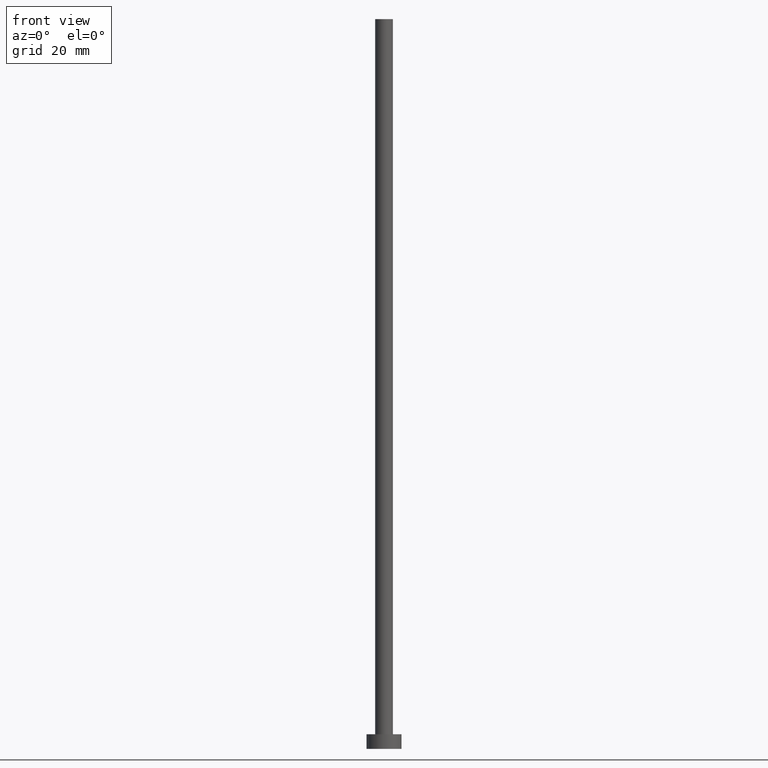
[diagram: clean part render]
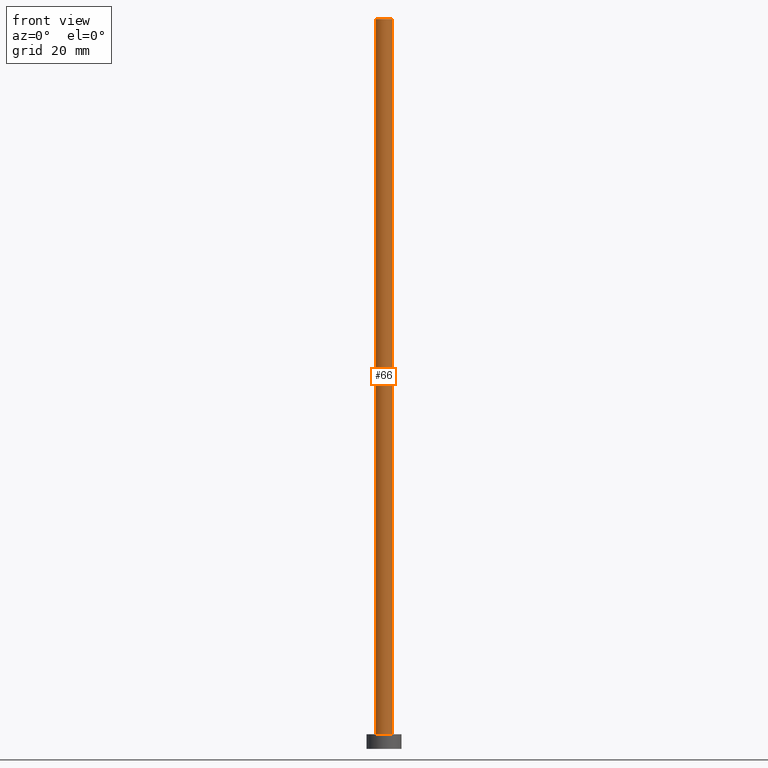
[diagram: same view with one face highlighted and labeled with its STEP entity id]
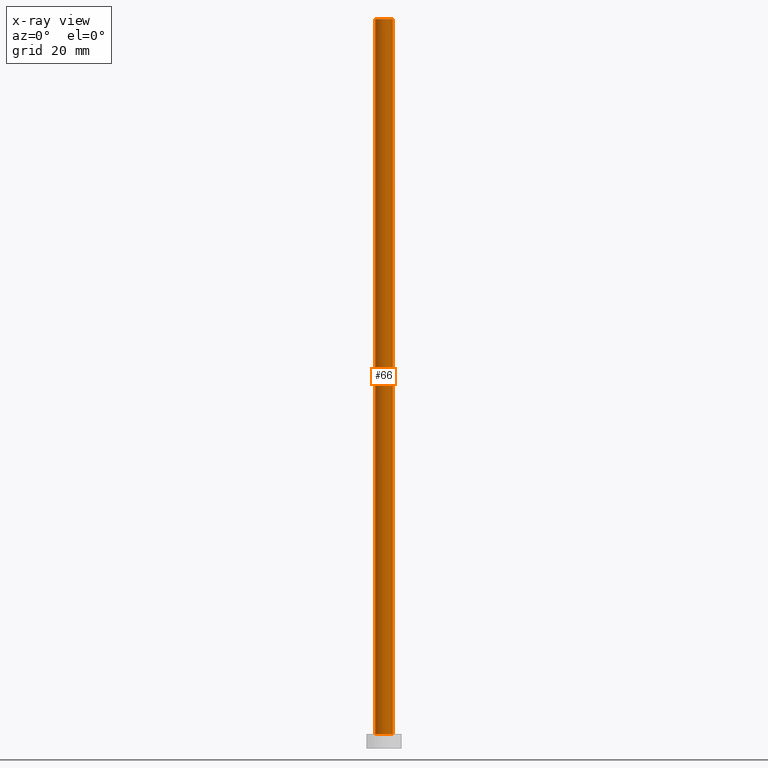
[diagram: x-ray of the same camera — body ghosted, the highlighted face saturated]
A machine part, front view. The second image highlights one B-rep face of the part: STEP entity #66.
The next image is the same camera in x-ray: the body ghosted, the highlighted face saturated — about 0% of this face is hidden behind the body in this view.
In plain terms, the highlighted cylindrical surface (edge-blend (fillet) strip) has radius 3.025 mm, axis along (-0, -0, -1).
Its self-contained STEP definition (entity closure, byte-faithful):
#7 = DIRECTION ( 'NONE',  ( -0.000000000000000000, -0.000000000000000000, -1.000000000000000000 ) ) ;
#8 = AXIS2_PLACEMENT_3D ( 'NONE', #102, #225, #10 ) ;
#10 = DIRECTION ( 'NONE',  ( 1.000000000000000000, 0.000000000000000000, 0.000000000000000000 ) ) ;
#19 = VECTOR ( 'NONE', #251, 1000.000000000000000 ) ;
#25 = ORIENTED_EDGE ( 'NONE', *, *, #152, .T. ) ;
#26 = CARTESIAN_POINT ( 'NONE',  ( 0.000000000000000000, 0.000000000000000000, 250.0000000000000000 ) ) ;
#28 = ORIENTED_EDGE ( 'NONE', *, *, #173, .F. ) ;
#36 = FACE_OUTER_BOUND ( 'NONE', #42, .T. ) ;
#42 = EDGE_LOOP ( 'NONE', ( #48, #28, #181, #25 ) ) ;
#46 = CARTESIAN_POINT ( 'NONE',  ( -3.024999999999999911, 0.000000000000000000, 250.0000000000000000 ) ) ;
#48 = ORIENTED_EDGE ( 'NONE', *, *, #200, .F. ) ;
#52 = CYLINDRICAL_SURFACE ( 'NONE', #239, 3.024999999999999911 ) ;
#66 = ADVANCED_FACE ( 'NONE', ( #36 ), #52, .T. ) ;
#72 = CARTESIAN_POINT ( 'NONE',  ( 0.000000000000000000, 0.000000000000000000, 250.0000000000000000 ) ) ;
#74 = LINE ( 'NONE', #186, #19 ) ;
#82 = VERTEX_POINT ( 'NONE', #249 ) ;
#83 = VERTEX_POINT ( 'NONE', #227 ) ;
#84 = VERTEX_POINT ( 'NONE', #182 ) ;
#88 = DIRECTION ( 'NONE',  ( -1.000000000000000000, 0.000000000000000000, 0.000000000000000000 ) ) ;
#102 = CARTESIAN_POINT ( 'NONE',  ( 0.000000000000000000, 0.000000000000000000, 5.000000000000000000 ) ) ;
#104 = CARTESIAN_POINT ( 'NONE',  ( 3.024999999999999911, 3.704556567420743261E-16, 250.0000000000000000 ) ) ;
#118 = EDGE_CURVE ( 'NONE', #238, #82, #74, .T. ) ;
#121 = CIRCLE ( 'NONE', #132, 3.024999999999999911 ) ;
#122 = LINE ( 'NONE', #104, #242 ) ;
#132 = AXIS2_PLACEMENT_3D ( 'NONE', #26, #161, #250 ) ;
#152 = EDGE_CURVE ( 'NONE', #82, #84, #236, .T. ) ;
#161 = DIRECTION ( 'NONE',  ( 0.000000000000000000, 0.000000000000000000, 1.000000000000000000 ) ) ;
#162 = DIRECTION ( 'NONE',  ( -0.000000000000000000, -0.000000000000000000, -1.000000000000000000 ) ) ;
#173 = EDGE_CURVE ( 'NONE', #238, #83, #121, .T. ) ;
#181 = ORIENTED_EDGE ( 'NONE', *, *, #118, .T. ) ;
#182 = CARTESIAN_POINT ( 'NONE',  ( 3.024999999999999911, 3.704556567420743261E-16, 5.000000000000000000 ) ) ;
#186 = CARTESIAN_POINT ( 'NONE',  ( -3.024999999999999911, 0.000000000000000000, 250.0000000000000000 ) ) ;
#200 = EDGE_CURVE ( 'NONE', #83, #84, #122, .T. ) ;
#225 = DIRECTION ( 'NONE',  ( 0.000000000000000000, 0.000000000000000000, 1.000000000000000000 ) ) ;
#227 = CARTESIAN_POINT ( 'NONE',  ( 3.024999999999999911, 3.704556567420743261E-16, 250.0000000000000000 ) ) ;
#236 = CIRCLE ( 'NONE', #8, 3.024999999999999911 ) ;
#238 = VERTEX_POINT ( 'NONE', #46 ) ;
#239 = AXIS2_PLACEMENT_3D ( 'NONE', #72, #162, #88 ) ;
#242 = VECTOR ( 'NONE', #7, 1000.000000000000000 ) ;
#249 = CARTESIAN_POINT ( 'NONE',  ( -3.024999999999999911, 0.000000000000000000, 5.000000000000000000 ) ) ;
#250 = DIRECTION ( 'NONE',  ( 1.000000000000000000, 0.000000000000000000, 0.000000000000000000 ) ) ;
#251 = DIRECTION ( 'NONE',  ( -0.000000000000000000, -0.000000000000000000, -1.000000000000000000 ) ) ;